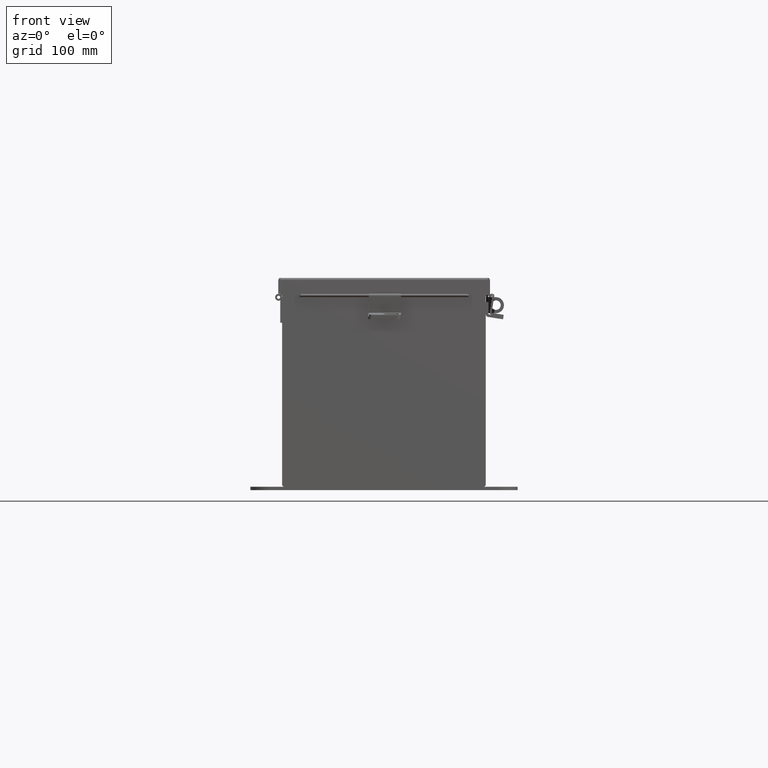
[diagram: clean part render]
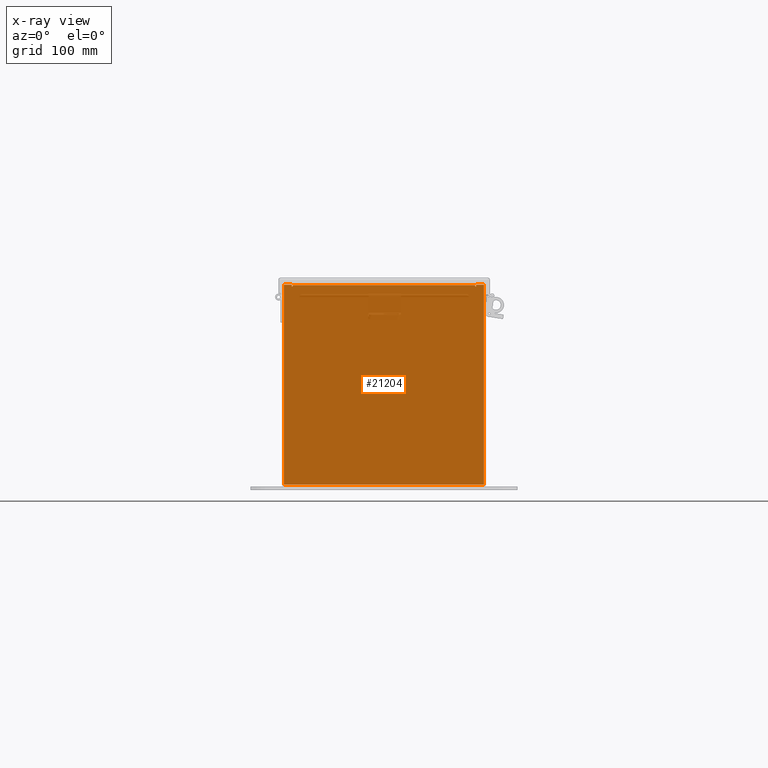
[diagram: x-ray — body ghosted, one internal face saturated and labeled with its STEP entity id]
A machine part, front view, then the same camera in x-ray: the body is ghosted and one INTERNAL B-rep face — a face not visible from any outside direction — is saturated and labeled: STEP entity #21204.
In plain terms, the highlighted planar face has unit normal (0, -1, 0).
Its self-contained STEP definition (entity closure, byte-faithful):
#26 = CARTESIAN_POINT ( 'NONE',  ( 3.925299999999999100, -0.07470000000000015500, 3.925299999999999100 ) ) ;
#65 = LINE ( 'NONE', #12449, #19672 ) ;
#307 = ORIENTED_EDGE ( 'NONE', *, *, #14101, .F. ) ;
#435 = ORIENTED_EDGE ( 'NONE', *, *, #10086, .F. ) ;
#615 = CARTESIAN_POINT ( 'NONE',  ( -3.925300000000000500, -0.07470000000000015500, -3.925300000000000500 ) ) ;
#823 = DIRECTION ( 'NONE',  ( 0.0000000000000000000, 0.0000000000000000000, -1.000000000000000000 ) ) ;
#1386 = AXIS2_PLACEMENT_3D ( 'NONE', #12679, #19588, #823 ) ;
#1512 = AXIS2_PLACEMENT_3D ( 'NONE', #4746, #7159, #18881 ) ;
#1514 = CARTESIAN_POINT ( 'NONE',  ( 3.582299999999999200, -0.07469999999999797600, 3.912299999999999200 ) ) ;
#1701 = EDGE_CURVE ( 'NONE', #17936, #16014, #22272, .T. ) ;
#1908 = EDGE_CURVE ( 'NONE', #13758, #15390, #21666, .T. ) ;
#2046 = CARTESIAN_POINT ( 'NONE',  ( -3.925300000000000500, -0.07470000000000015500, 3.925299999999999100 ) ) ;
#2091 = ORIENTED_EDGE ( 'NONE', *, *, #14157, .F. ) ;
#2188 = DIRECTION ( 'NONE',  ( -0.0000000000000000000, -0.0000000000000000000, 1.000000000000000000 ) ) ;
#3186 = ORIENTED_EDGE ( 'NONE', *, *, #17161, .F. ) ;
#3665 = VECTOR ( 'NONE', #16976, 39.37007874015748100 ) ;
#3689 = EDGE_CURVE ( 'NONE', #10828, #13758, #12303, .T. ) ;
#3822 = CARTESIAN_POINT ( 'NONE',  ( -3.582300000000000000, -0.07470000000000015500, 3.874949999999997900 ) ) ;
#4670 = CARTESIAN_POINT ( 'NONE',  ( -3.619650000000000500, -0.07470000000000015500, 3.925299999999999100 ) ) ;
#4746 = CARTESIAN_POINT ( 'NONE',  ( 3.600974999999999100, -0.07469999999999797600, 3.874949999999997900 ) ) ;
#4881 = VECTOR ( 'NONE', #12339, 39.37007874015748100 ) ;
#4989 = VECTOR ( 'NONE', #16455, 39.37007874015748100 ) ;
#5163 = EDGE_LOOP ( 'NONE', ( #2091, #5203, #11281, #3186, #11605, #435, #307, #14324, #10433, #10952, #8364, #5286 ) ) ;
#5203 = ORIENTED_EDGE ( 'NONE', *, *, #20451, .F. ) ;
#5286 = ORIENTED_EDGE ( 'NONE', *, *, #21027, .F. ) ;
#5343 = CIRCLE ( 'NONE', #1386, 0.01867500000000003900 ) ;
#5525 = DIRECTION ( 'NONE',  ( 0.0000000000000000000, -0.0000000000000000000, -1.000000000000000000 ) ) ;
#5630 = CARTESIAN_POINT ( 'NONE',  ( -3.925300000000000500, -0.07470000000000015500, 3.925299999999999100 ) ) ;
#5759 = DIRECTION ( 'NONE',  ( 0.0000000000000000000, 1.186875369640613200E-014, -1.000000000000000000 ) ) ;
#6130 = DIRECTION ( 'NONE',  ( 0.0000000000000000000, 0.0000000000000000000, 1.000000000000000000 ) ) ;
#6162 = CARTESIAN_POINT ( 'NONE',  ( -3.619650000000000500, -0.07470000000000015500, 3.925299999999999100 ) ) ;
#6287 = VERTEX_POINT ( 'NONE', #3822 ) ;
#6923 = CARTESIAN_POINT ( 'NONE',  ( -3.619650000000000500, -0.07470000000000015500, 3.874949999999997900 ) ) ;
#7159 = DIRECTION ( 'NONE',  ( 0.0000000000000000000, -1.000000000000000000, 0.0000000000000000000 ) ) ;
#7355 = CARTESIAN_POINT ( 'NONE',  ( 3.619650000000000500, -0.07470000000000015500, 3.925299999999999100 ) ) ;
#7439 = CARTESIAN_POINT ( 'NONE',  ( -3.925300000000000500, -0.07470000000000015500, -3.925300000000000500 ) ) ;
#7732 = CARTESIAN_POINT ( 'NONE',  ( 0.0000000000000000000, -0.07470000000000015500, 0.0000000000000000000 ) ) ;
#7814 = VERTEX_POINT ( 'NONE', #26 ) ;
#7862 = CARTESIAN_POINT ( 'NONE',  ( 3.925299999999999100, -0.07470000000000015500, -3.925300000000000500 ) ) ;
#8117 = CARTESIAN_POINT ( 'NONE',  ( -3.582300000000000000, -0.07469999999999797600, 3.912299999999999200 ) ) ;
#8364 = ORIENTED_EDGE ( 'NONE', *, *, #3689, .F. ) ;
#8564 = LINE ( 'NONE', #9643, #4989 ) ;
#8803 = CARTESIAN_POINT ( 'NONE',  ( 3.582299999999999200, -0.07470000000000015500, 3.912299999999999200 ) ) ;
#8806 = EDGE_CURVE ( 'NONE', #13662, #13007, #8564, .T. ) ;
#8892 = CARTESIAN_POINT ( 'NONE',  ( 3.925299999999999100, -0.07470000000000015500, 3.925299999999999100 ) ) ;
#9124 = VECTOR ( 'NONE', #5759, 39.37007874015748100 ) ;
#9130 = LINE ( 'NONE', #8892, #10204 ) ;
#9575 = DIRECTION ( 'NONE',  ( 1.000000000000000000, 0.0000000000000000000, 0.0000000000000000000 ) ) ;
#9621 = CARTESIAN_POINT ( 'NONE',  ( 3.619649999999999100, -0.07469999999999797600, 3.874949999999997900 ) ) ;
#9643 = CARTESIAN_POINT ( 'NONE',  ( -3.925300000000000500, -0.07470000000000015500, 3.925299999999999100 ) ) ;
#10022 = CIRCLE ( 'NONE', #1512, 0.01867500000000003900 ) ;
#10086 = EDGE_CURVE ( 'NONE', #7814, #17936, #9130, .T. ) ;
#10133 = VERTEX_POINT ( 'NONE', #16640 ) ;
#10204 = VECTOR ( 'NONE', #11841, 39.37007874015748100 ) ;
#10433 = ORIENTED_EDGE ( 'NONE', *, *, #11155, .F. ) ;
#10758 = VECTOR ( 'NONE', #2188, 39.37007874015748100 ) ;
#10828 = VERTEX_POINT ( 'NONE', #20577 ) ;
#10952 = ORIENTED_EDGE ( 'NONE', *, *, #1908, .F. ) ;
#11155 = EDGE_CURVE ( 'NONE', #15390, #10133, #10022, .T. ) ;
#11281 = ORIENTED_EDGE ( 'NONE', *, *, #8806, .F. ) ;
#11513 = VECTOR ( 'NONE', #9575, 39.37007874015748100 ) ;
#11580 = VECTOR ( 'NONE', #17293, 39.37007874015748100 ) ;
#11605 = ORIENTED_EDGE ( 'NONE', *, *, #1701, .F. ) ;
#11714 = DIRECTION ( 'NONE',  ( 1.000000000000000000, 0.0000000000000000000, 0.0000000000000000000 ) ) ;
#11841 = DIRECTION ( 'NONE',  ( 0.0000000000000000000, 0.0000000000000000000, -1.000000000000000000 ) ) ;
#11911 = PLANE ( 'NONE',  #14749 ) ;
#12303 = LINE ( 'NONE', #8117, #11513 ) ;
#12339 = DIRECTION ( 'NONE',  ( -1.000000000000000000, -0.0000000000000000000, -0.0000000000000000000 ) ) ;
#12449 = CARTESIAN_POINT ( 'NONE',  ( -3.925300000000000500, -0.07470000000000015500, 3.925299999999999100 ) ) ;
#12679 = CARTESIAN_POINT ( 'NONE',  ( -3.600975000000000000, -0.07469999999999797600, 3.874949999999997900 ) ) ;
#13007 = VERTEX_POINT ( 'NONE', #4670 ) ;
#13662 = VERTEX_POINT ( 'NONE', #5630 ) ;
#13758 = VERTEX_POINT ( 'NONE', #8803 ) ;
#14101 = EDGE_CURVE ( 'NONE', #17090, #7814, #65, .T. ) ;
#14157 = EDGE_CURVE ( 'NONE', #21909, #6287, #5343, .T. ) ;
#14324 = ORIENTED_EDGE ( 'NONE', *, *, #17114, .F. ) ;
#14470 = LINE ( 'NONE', #9621, #11580 ) ;
#14749 = AXIS2_PLACEMENT_3D ( 'NONE', #7732, #18449, #5525 ) ;
#15390 = VERTEX_POINT ( 'NONE', #20459 ) ;
#16014 = VERTEX_POINT ( 'NONE', #615 ) ;
#16455 = DIRECTION ( 'NONE',  ( 1.000000000000000000, 0.0000000000000000000, 0.0000000000000000000 ) ) ;
#16616 = FACE_OUTER_BOUND ( 'NONE', #5163, .T. ) ;
#16638 = LINE ( 'NONE', #6162, #9124 ) ;
#16640 = CARTESIAN_POINT ( 'NONE',  ( 3.619649999999999100, -0.07470000000000015500, 3.874949999999997900 ) ) ;
#16976 = DIRECTION ( 'NONE',  ( 0.0000000000000000000, 0.0000000000000000000, -1.000000000000000000 ) ) ;
#17090 = VERTEX_POINT ( 'NONE', #7355 ) ;
#17114 = EDGE_CURVE ( 'NONE', #10133, #17090, #14470, .T. ) ;
#17161 = EDGE_CURVE ( 'NONE', #16014, #13662, #17393, .T. ) ;
#17293 = DIRECTION ( 'NONE',  ( 2.170286390199978800E-014, -1.186875369640613200E-014, 1.000000000000000000 ) ) ;
#17393 = LINE ( 'NONE', #2046, #10758 ) ;
#17870 = CARTESIAN_POINT ( 'NONE',  ( -3.582300000000000000, -0.07469999999999797600, 3.874949999999997900 ) ) ;
#17936 = VERTEX_POINT ( 'NONE', #7862 ) ;
#18300 = LINE ( 'NONE', #17870, #22443 ) ;
#18449 = DIRECTION ( 'NONE',  ( 0.0000000000000000000, -1.000000000000000000, 0.0000000000000000000 ) ) ;
#18881 = DIRECTION ( 'NONE',  ( 0.0000000000000000000, 0.0000000000000000000, -1.000000000000000000 ) ) ;
#19588 = DIRECTION ( 'NONE',  ( 0.0000000000000000000, -1.000000000000000000, 0.0000000000000000000 ) ) ;
#19672 = VECTOR ( 'NONE', #11714, 39.37007874015748100 ) ;
#20451 = EDGE_CURVE ( 'NONE', #13007, #21909, #16638, .T. ) ;
#20459 = CARTESIAN_POINT ( 'NONE',  ( 3.582299999999999200, -0.07470000000000015500, 3.874949999999997900 ) ) ;
#20577 = CARTESIAN_POINT ( 'NONE',  ( -3.582300000000000000, -0.07470000000000015500, 3.912299999999999200 ) ) ;
#21027 = EDGE_CURVE ( 'NONE', #6287, #10828, #18300, .T. ) ;
#21204 = ADVANCED_FACE ( 'NONE', ( #16616 ), #11911, .T. ) ;
#21666 = LINE ( 'NONE', #1514, #3665 ) ;
#21909 = VERTEX_POINT ( 'NONE', #6923 ) ;
#22272 = LINE ( 'NONE', #7439, #4881 ) ;
#22443 = VECTOR ( 'NONE', #6130, 39.37007874015748100 ) ;